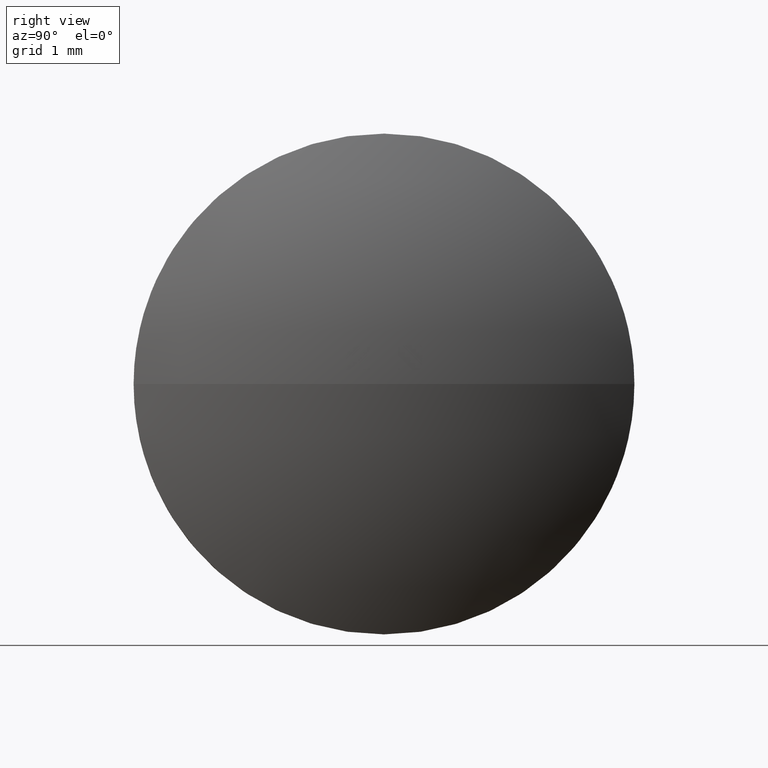
[diagram: clean part render]
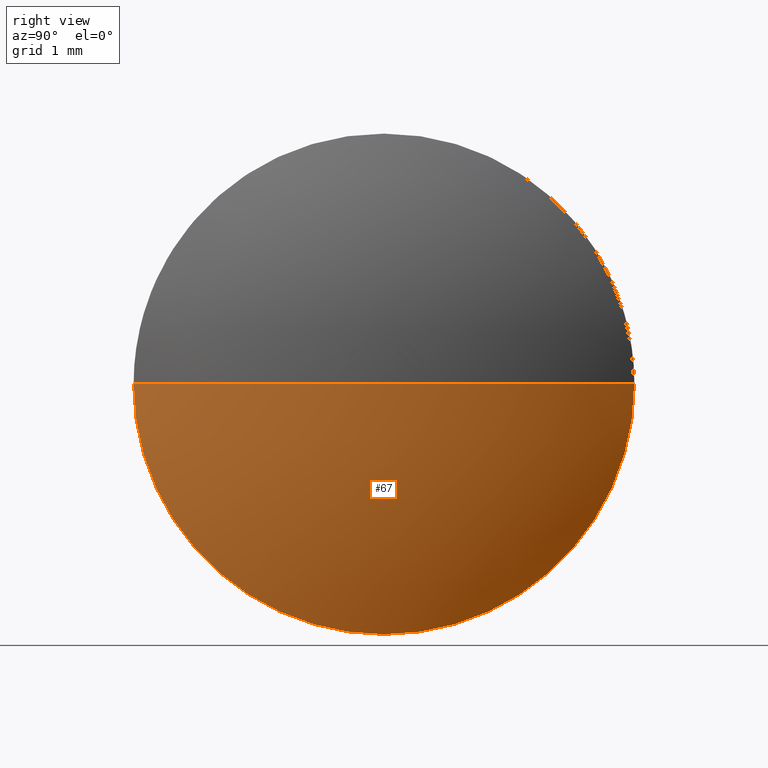
[diagram: same view with one face highlighted and labeled with its STEP entity id]
A machine part, right view. The second image highlights one B-rep face of the part: STEP entity #67.
In plain terms, the highlighted spherical surface has radius 6.4603 mm.
Its self-contained STEP definition (entity closure, byte-faithful):
#2 = DIRECTION ( 'NONE',  ( 1.000000000000000000, 0.0000000000000000000, 0.0000000000000000000 ) ) ;
#3 = CARTESIAN_POINT ( 'NONE',  ( 533.7935078641276000, 80.37052637251875400, 0.0000000000000000000 ) ) ;
#17 = VERTEX_POINT ( 'NONE', #128 ) ;
#18 = SPHERICAL_SURFACE ( 'NONE', #162, 6.460304878048719800 ) ;
#21 = VERTEX_POINT ( 'NONE', #62 ) ;
#24 = CARTESIAN_POINT ( 'NONE',  ( 534.6135078641276600, 77.22052637251867700, 0.0000000000000000000 ) ) ;
#30 = AXIS2_PLACEMENT_3D ( 'NONE', #35, #50, #153 ) ;
#32 = AXIS2_PLACEMENT_3D ( 'NONE', #73, #76, #2 ) ;
#35 = CARTESIAN_POINT ( 'NONE',  ( 533.7935078641276000, 77.22052637251874800, 0.0000000000000000000 ) ) ;
#37 = AXIS2_PLACEMENT_3D ( 'NONE', #179, #113, #85 ) ;
#38 = AXIS2_PLACEMENT_3D ( 'NONE', #104, #106, #133 ) ;
#46 = DIRECTION ( 'NONE',  ( 0.0000000000000000000, 1.000000000000000000, 0.0000000000000000000 ) ) ;
#49 = CIRCLE ( 'NONE', #30, 3.149999999999999900 ) ;
#50 = DIRECTION ( 'NONE',  ( -1.000000000000000000, -0.0000000000000000000, -0.0000000000000000000 ) ) ;
#59 = EDGE_CURVE ( 'NONE', #151, #17, #122, .T. ) ;
#60 = CIRCLE ( 'NONE', #38, 3.149999999999999900 ) ;
#62 = CARTESIAN_POINT ( 'NONE',  ( 533.7935078641276000, 77.22052637251874800, -3.149999999999999900 ) ) ;
#67 = ADVANCED_FACE ( 'NONE', ( #178 ), #18, .T. ) ;
#73 = CARTESIAN_POINT ( 'NONE',  ( 528.1532029860789000, 77.22052637251867700, 0.0000000000000000000 ) ) ;
#76 = DIRECTION ( 'NONE',  ( -0.0000000000000000000, 0.0000000000000000000, 1.000000000000000000 ) ) ;
#80 = ORIENTED_EDGE ( 'NONE', *, *, #59, .T. ) ;
#85 = DIRECTION ( 'NONE',  ( 0.0000000000000000000, 1.000000000000000000, 1.224646799147353700E-016 ) ) ;
#86 = EDGE_LOOP ( 'NONE', ( #158, #80, #129, #110 ) ) ;
#89 = CIRCLE ( 'NONE', #32, 6.460304878048717100 ) ;
#91 = EDGE_CURVE ( 'NONE', #151, #127, #89, .T. ) ;
#101 = CARTESIAN_POINT ( 'NONE',  ( 528.1532029860789000, 77.22052637251867700, 0.0000000000000000000 ) ) ;
#104 = CARTESIAN_POINT ( 'NONE',  ( 533.7935078641276000, 77.22052637251874800, 0.0000000000000000000 ) ) ;
#106 = DIRECTION ( 'NONE',  ( -1.000000000000000000, -0.0000000000000000000, -0.0000000000000000000 ) ) ;
#110 = ORIENTED_EDGE ( 'NONE', *, *, #160, .F. ) ;
#113 = DIRECTION ( 'NONE',  ( 0.0000000000000000000, 1.224646799147353200E-016, -1.000000000000000000 ) ) ;
#122 = CIRCLE ( 'NONE', #37, 6.460304878048717100 ) ;
#127 = VERTEX_POINT ( 'NONE', #3 ) ;
#128 = CARTESIAN_POINT ( 'NONE',  ( 533.7935078641276000, 74.07052637251868500, -3.857637417314155800E-016 ) ) ;
#129 = ORIENTED_EDGE ( 'NONE', *, *, #180, .F. ) ;
#133 = DIRECTION ( 'NONE',  ( 0.0000000000000000000, 0.0000000000000000000, 1.000000000000000000 ) ) ;
#150 = DIRECTION ( 'NONE',  ( -0.0000000000000000000, 0.0000000000000000000, -1.000000000000000000 ) ) ;
#151 = VERTEX_POINT ( 'NONE', #24 ) ;
#153 = DIRECTION ( 'NONE',  ( 0.0000000000000000000, 0.0000000000000000000, 1.000000000000000000 ) ) ;
#158 = ORIENTED_EDGE ( 'NONE', *, *, #91, .F. ) ;
#160 = EDGE_CURVE ( 'NONE', #127, #21, #60, .T. ) ;
#162 = AXIS2_PLACEMENT_3D ( 'NONE', #101, #150, #46 ) ;
#178 = FACE_OUTER_BOUND ( 'NONE', #86, .T. ) ;
#179 = CARTESIAN_POINT ( 'NONE',  ( 528.1532029860789000, 77.22052637251867700, 0.0000000000000000000 ) ) ;
#180 = EDGE_CURVE ( 'NONE', #21, #17, #49, .T. ) ;